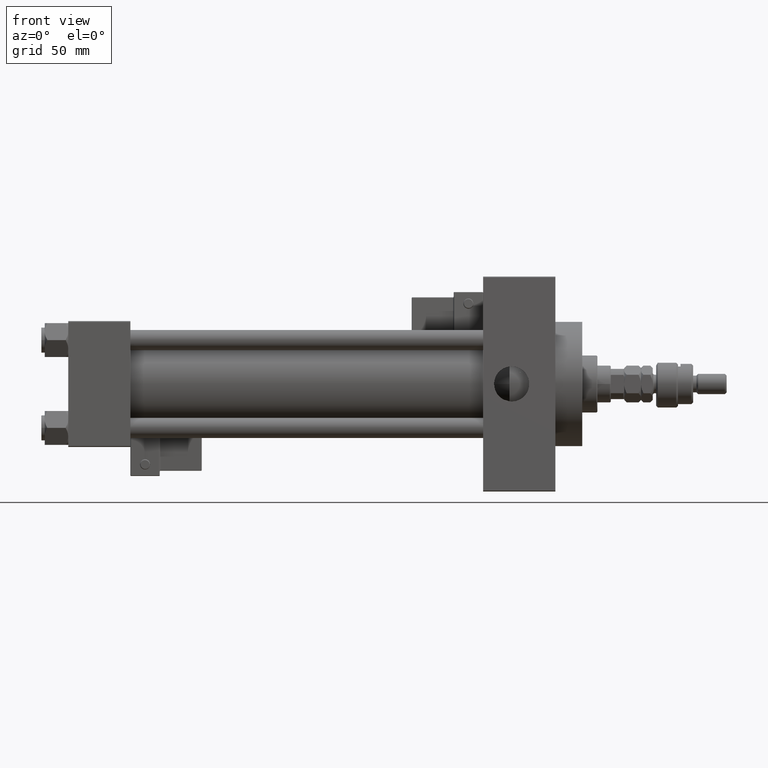
[diagram: clean part render]
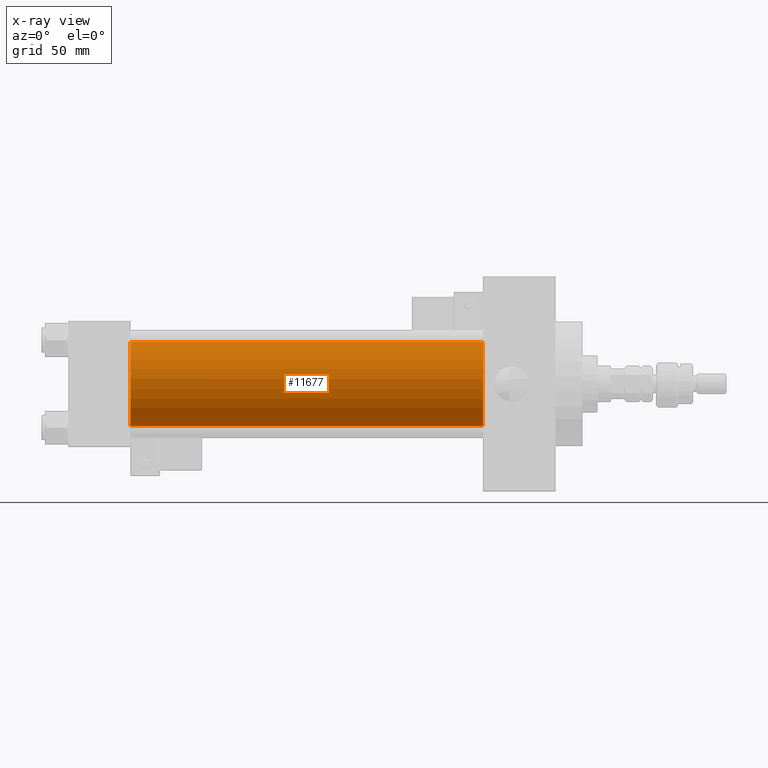
[diagram: x-ray — body ghosted, one internal face saturated and labeled with its STEP entity id]
A machine part, front view, then the same camera in x-ray: the body is ghosted and one INTERNAL B-rep face — a face not visible from any outside direction — is saturated and labeled: STEP entity #11677.
In plain terms, the highlighted cylindrical surface (partial cylindrical patch) has radius 25 mm, axis along (-1, -0, -0).
Its self-contained STEP definition (entity closure, byte-faithful):
#805 = AXIS2_PLACEMENT_3D ( 'NONE', #52569, #18915, #2627 ) ;
#1062 = LINE ( 'NONE', #47664, #1787 ) ;
#1689 = EDGE_LOOP ( 'NONE', ( #48279, #46681, #37295, #35338 ) ) ;
#1787 = VECTOR ( 'NONE', #14560, 1000.000000000000000 ) ;
#2627 = DIRECTION ( 'NONE',  ( 0.000000000000000000, 0.000000000000000000, 1.000000000000000000 ) ) ;
#4733 = CARTESIAN_POINT ( 'NONE',  ( 37.00000000000000000, -2.602085213965210642E-15, 25.00000000000000000 ) ) ;
#4740 = EDGE_CURVE ( 'NONE', #41409, #19277, #18158, .T. ) ;
#8709 = DIRECTION ( 'NONE',  ( 1.000000000000000000, 0.000000000000000000, 0.000000000000000000 ) ) ;
#8975 = DIRECTION ( 'NONE',  ( 0.000000000000000000, 0.000000000000000000, -1.000000000000000000 ) ) ;
#9747 = DIRECTION ( 'NONE',  ( 1.000000000000000000, 0.000000000000000000, 0.000000000000000000 ) ) ;
#10696 = CARTESIAN_POINT ( 'NONE',  ( 247.0000000000000000, -2.602085213965210642E-15, 25.00000000000000000 ) ) ;
#11677 = ADVANCED_FACE ( 'NONE', ( #44555 ), #48151, .F. ) ;
#12036 = VECTOR ( 'NONE', #54417, 1000.000000000000000 ) ;
#14560 = DIRECTION ( 'NONE',  ( -1.000000000000000000, -0.000000000000000000, -0.000000000000000000 ) ) ;
#14672 = EDGE_CURVE ( 'NONE', #30067, #19277, #1062, .T. ) ;
#15229 = CARTESIAN_POINT ( 'NONE',  ( 37.00000000000000000, 4.595317839031724996E-16, -25.00000000000000000 ) ) ;
#18158 = CIRCLE ( 'NONE', #34870, 25.00000000000000000 ) ;
#18915 = DIRECTION ( 'NONE',  ( -1.000000000000000000, -0.000000000000000000, -0.000000000000000000 ) ) ;
#19277 = VERTEX_POINT ( 'NONE', #15229 ) ;
#22726 = DIRECTION ( 'NONE',  ( 0.000000000000000000, 0.000000000000000000, -1.000000000000000000 ) ) ;
#25796 = CARTESIAN_POINT ( 'NONE',  ( 247.0000000000000000, -2.602085213965210642E-15, 0.000000000000000000 ) ) ;
#29847 = LINE ( 'NONE', #50534, #12036 ) ;
#30067 = VERTEX_POINT ( 'NONE', #30874 ) ;
#30874 = CARTESIAN_POINT ( 'NONE',  ( 247.0000000000000000, 4.595317839031724996E-16, -25.00000000000000000 ) ) ;
#32175 = EDGE_CURVE ( 'NONE', #44239, #30067, #45079, .T. ) ;
#34870 = AXIS2_PLACEMENT_3D ( 'NONE', #39538, #9747, #22726 ) ;
#35338 = ORIENTED_EDGE ( 'NONE', *, *, #45070, .F. ) ;
#37295 = ORIENTED_EDGE ( 'NONE', *, *, #4740, .F. ) ;
#39538 = CARTESIAN_POINT ( 'NONE',  ( 37.00000000000000000, -2.602085213965210642E-15, 0.000000000000000000 ) ) ;
#41409 = VERTEX_POINT ( 'NONE', #4733 ) ;
#44239 = VERTEX_POINT ( 'NONE', #10696 ) ;
#44555 = FACE_OUTER_BOUND ( 'NONE', #1689, .T. ) ;
#45070 = EDGE_CURVE ( 'NONE', #44239, #41409, #29847, .T. ) ;
#45079 = CIRCLE ( 'NONE', #53900, 25.00000000000000000 ) ;
#46681 = ORIENTED_EDGE ( 'NONE', *, *, #14672, .T. ) ;
#47664 = CARTESIAN_POINT ( 'NONE',  ( 247.0000000000000000, 4.595317839031724996E-16, -25.00000000000000000 ) ) ;
#48151 = CYLINDRICAL_SURFACE ( 'NONE', #805, 25.00000000000000000 ) ;
#48279 = ORIENTED_EDGE ( 'NONE', *, *, #32175, .T. ) ;
#50534 = CARTESIAN_POINT ( 'NONE',  ( 247.0000000000000000, -2.602085213965210642E-15, 25.00000000000000000 ) ) ;
#52569 = CARTESIAN_POINT ( 'NONE',  ( 247.0000000000000000, -2.602085213965210642E-15, 0.000000000000000000 ) ) ;
#53900 = AXIS2_PLACEMENT_3D ( 'NONE', #25796, #8709, #8975 ) ;
#54417 = DIRECTION ( 'NONE',  ( -1.000000000000000000, -0.000000000000000000, -0.000000000000000000 ) ) ;